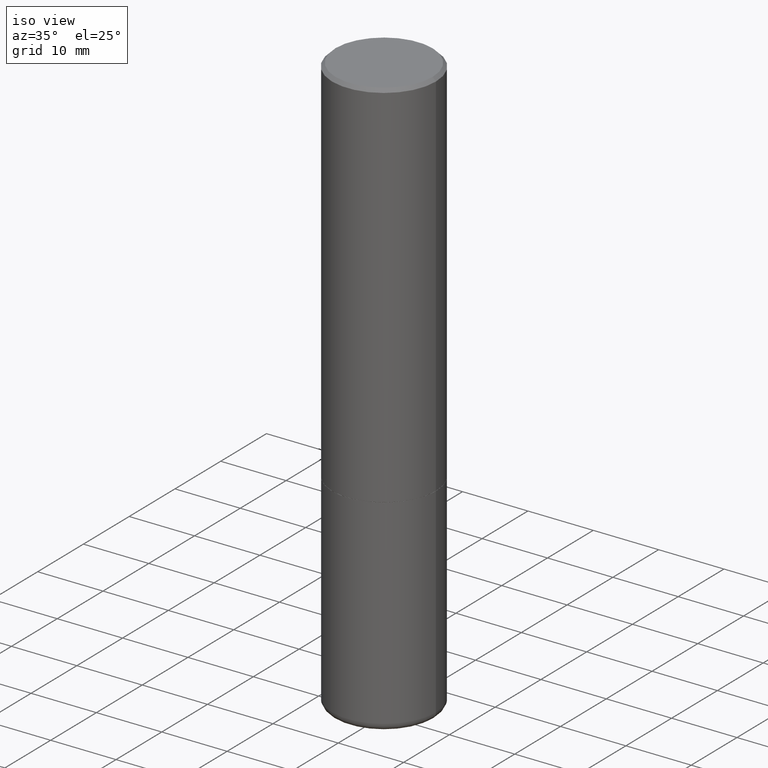
[diagram: clean part render]
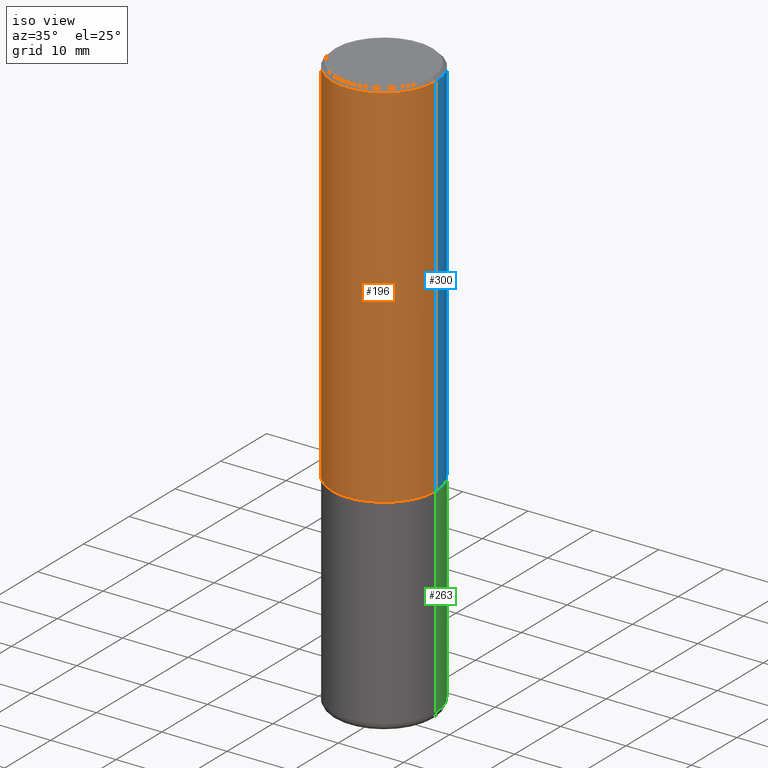
[diagram: same view with three faces highlighted in distinct colors, each labeled with its STEP entity id]
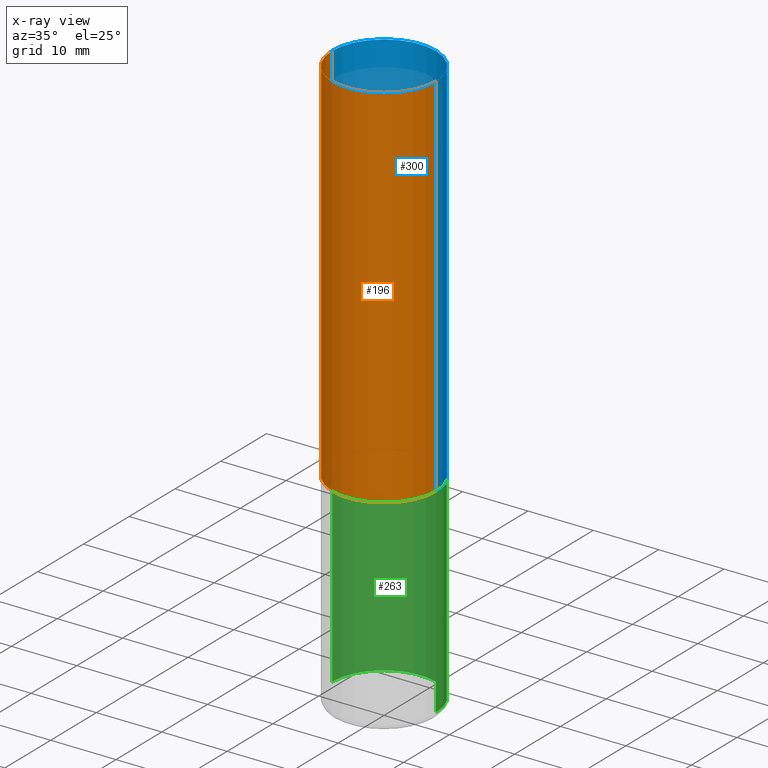
[diagram: x-ray of the same camera — body ghosted, the three highlighted faces saturated]
A machine part, iso view with three faces highlighted in distinct colors.
The next image is the same camera in x-ray (body ghosted, the three faces saturated) — at least one of them is partly hidden behind the body in this view.
Their STEP definitions:

[orange] entity #196 — the highlighted cylindrical surface (partial cylindrical patch) has radius 7.9375 mm, axis along (-0, 0, 1).
#7 = DIRECTION ( 'NONE',  ( -2.445468806185136877E-29, 3.491481338843145188E-15, 1.000000000000000000 ) ) ;
#17 = FACE_OUTER_BOUND ( 'NONE', #339, .T. ) ;
#18 = DIRECTION ( 'NONE',  ( -2.445468806185136597E-29, 3.491481338843145583E-15, 1.000000000000000000 ) ) ;
#36 = LINE ( 'NONE', #176, #404 ) ;
#37 = DIRECTION ( 'NONE',  ( 1.000000000000000000, -6.982962677686265133E-15, 0.000000000000000000 ) ) ;
#61 = VECTOR ( 'NONE', #312, 39.37007874015748143 ) ;
#67 = LINE ( 'NONE', #209, #61 ) ;
#68 = DIRECTION ( 'NONE',  ( -2.445468806185136597E-29, 3.491481338843145583E-15, 1.000000000000000000 ) ) ;
#78 = CARTESIAN_POINT ( 'NONE',  ( -0.3125000000000000000, -1.740639529667232739E-15, -2.248999999999999222 ) ) ;
#103 = EDGE_CURVE ( 'NONE', #165, #337, #67, .T. ) ;
#120 = EDGE_CURVE ( 'NONE', #407, #179, #36, .T. ) ;
#125 = CARTESIAN_POINT ( 'NONE',  ( -0.3124999999999998335, 2.112346210000093866E-15, -0.02000000000000002123 ) ) ;
#127 = CIRCLE ( 'NONE', #320, 0.3125000000000000000 ) ;
#141 = DIRECTION ( 'NONE',  ( 1.000000000000000000, -6.982962677686266711E-15, 4.876176775795935232E-29 ) ) ;
#151 = DIRECTION ( 'NONE',  ( -2.445468806185136597E-29, 3.491481338843145583E-15, 1.000000000000000000 ) ) ;
#155 = DIRECTION ( 'NONE',  ( 1.000000000000000000, -6.982962677686269077E-15, 0.000000000000000000 ) ) ;
#156 = EDGE_CURVE ( 'NONE', #165, #407, #127, .T. ) ;
#165 = VERTEX_POINT ( 'NONE', #78 ) ;
#176 = CARTESIAN_POINT ( 'NONE',  ( 0.3124999999999998890, -2.182175836776957558E-15, 1.523805242436229235E-29 ) ) ;
#179 = VERTEX_POINT ( 'NONE', #318 ) ;
#181 = CARTESIAN_POINT ( 'NONE',  ( 0.3125000000000000000, -1.003451736783519063E-14, -2.248999999999999222 ) ) ;
#193 = AXIS2_PLACEMENT_3D ( 'NONE', #380, #68, #37 ) ;
#196 = ADVANCED_FACE ( 'NONE', ( #17 ), #210, .T. ) ;
#198 = ORIENTED_EDGE ( 'NONE', *, *, #240, .F. ) ;
#201 = AXIS2_PLACEMENT_3D ( 'NONE', #249, #151, #141 ) ;
#209 = CARTESIAN_POINT ( 'NONE',  ( -0.3124999999999998890, 2.220446049250312292E-15, -1.537167215704657391E-29 ) ) ;
#210 = CYLINDRICAL_SURFACE ( 'NONE', #201, 0.3124999999999998890 ) ;
#211 = CIRCLE ( 'NONE', #193, 0.3124999999999998335 ) ;
#240 = EDGE_CURVE ( 'NONE', #337, #179, #211, .T. ) ;
#249 = CARTESIAN_POINT ( 'NONE',  ( 0.000000000000000000, 0.000000000000000000, 0.000000000000000000 ) ) ;
#255 = CARTESIAN_POINT ( 'NONE',  ( 5.499859345110370619E-29, -7.852341531058232286E-15, -2.248999999999999222 ) ) ;
#266 = ORIENTED_EDGE ( 'NONE', *, *, #156, .T. ) ;
#306 = ORIENTED_EDGE ( 'NONE', *, *, #120, .T. ) ;
#312 = DIRECTION ( 'NONE',  ( -2.445468806185136877E-29, 3.491481338843145188E-15, 1.000000000000000000 ) ) ;
#318 = CARTESIAN_POINT ( 'NONE',  ( 0.3124999999999998335, -2.213735251080465334E-15, -0.02000000000000002123 ) ) ;
#320 = AXIS2_PLACEMENT_3D ( 'NONE', #255, #18, #155 ) ;
#337 = VERTEX_POINT ( 'NONE', #125 ) ;
#339 = EDGE_LOOP ( 'NONE', ( #374, #266, #306, #198 ) ) ;
#374 = ORIENTED_EDGE ( 'NONE', *, *, #103, .F. ) ;
#380 = CARTESIAN_POINT ( 'NONE',  ( 4.890937612370278413E-31, -6.982962677686297772E-17, -0.02000000000000002123 ) ) ;
#404 = VECTOR ( 'NONE', #7, 39.37007874015748143 ) ;
#407 = VERTEX_POINT ( 'NONE', #181 ) ;

[blue] entity #300 — the highlighted cylindrical surface (partial cylindrical patch) has radius 7.9375 mm, axis along (-0, 0, 1).
#4 = DIRECTION ( 'NONE',  ( 1.000000000000000000, -6.982962677686269077E-15, 0.000000000000000000 ) ) ;
#7 = DIRECTION ( 'NONE',  ( -2.445468806185136877E-29, 3.491481338843145188E-15, 1.000000000000000000 ) ) ;
#30 = ORIENTED_EDGE ( 'NONE', *, *, #293, .T. ) ;
#36 = LINE ( 'NONE', #176, #404 ) ;
#54 = EDGE_CURVE ( 'NONE', #179, #337, #278, .T. ) ;
#56 = AXIS2_PLACEMENT_3D ( 'NONE', #349, #379, #418 ) ;
#61 = VECTOR ( 'NONE', #312, 39.37007874015748143 ) ;
#67 = LINE ( 'NONE', #209, #61 ) ;
#78 = CARTESIAN_POINT ( 'NONE',  ( -0.3125000000000000000, -1.740639529667232739E-15, -2.248999999999999222 ) ) ;
#100 = CIRCLE ( 'NONE', #114, 0.3125000000000000000 ) ;
#103 = EDGE_CURVE ( 'NONE', #165, #337, #67, .T. ) ;
#106 = CYLINDRICAL_SURFACE ( 'NONE', #357, 0.3124999999999998890 ) ;
#114 = AXIS2_PLACEMENT_3D ( 'NONE', #173, #309, #4 ) ;
#120 = EDGE_CURVE ( 'NONE', #407, #179, #36, .T. ) ;
#125 = CARTESIAN_POINT ( 'NONE',  ( -0.3124999999999998335, 2.112346210000093866E-15, -0.02000000000000002123 ) ) ;
#165 = VERTEX_POINT ( 'NONE', #78 ) ;
#173 = CARTESIAN_POINT ( 'NONE',  ( 5.499859345110370619E-29, -7.852341531058232286E-15, -2.248999999999999222 ) ) ;
#176 = CARTESIAN_POINT ( 'NONE',  ( 0.3124999999999998890, -2.182175836776957558E-15, 1.523805242436229235E-29 ) ) ;
#179 = VERTEX_POINT ( 'NONE', #318 ) ;
#181 = CARTESIAN_POINT ( 'NONE',  ( 0.3125000000000000000, -1.003451736783519063E-14, -2.248999999999999222 ) ) ;
#205 = EDGE_LOOP ( 'NONE', ( #30, #367, #370, #269 ) ) ;
#209 = CARTESIAN_POINT ( 'NONE',  ( -0.3124999999999998890, 2.220446049250312292E-15, -1.537167215704657391E-29 ) ) ;
#226 = DIRECTION ( 'NONE',  ( 1.000000000000000000, -6.982962677686266711E-15, 4.876176775795935232E-29 ) ) ;
#243 = CARTESIAN_POINT ( 'NONE',  ( 0.000000000000000000, 0.000000000000000000, 0.000000000000000000 ) ) ;
#269 = ORIENTED_EDGE ( 'NONE', *, *, #120, .F. ) ;
#278 = CIRCLE ( 'NONE', #56, 0.3124999999999998335 ) ;
#293 = EDGE_CURVE ( 'NONE', #407, #165, #100, .T. ) ;
#300 = ADVANCED_FACE ( 'NONE', ( #415 ), #106, .T. ) ;
#309 = DIRECTION ( 'NONE',  ( -2.445468806185136597E-29, 3.491481338843145583E-15, 1.000000000000000000 ) ) ;
#312 = DIRECTION ( 'NONE',  ( -2.445468806185136877E-29, 3.491481338843145188E-15, 1.000000000000000000 ) ) ;
#318 = CARTESIAN_POINT ( 'NONE',  ( 0.3124999999999998335, -2.213735251080465334E-15, -0.02000000000000002123 ) ) ;
#337 = VERTEX_POINT ( 'NONE', #125 ) ;
#349 = CARTESIAN_POINT ( 'NONE',  ( 4.890937612370278413E-31, -6.982962677686297772E-17, -0.02000000000000002123 ) ) ;
#357 = AXIS2_PLACEMENT_3D ( 'NONE', #243, #376, #226 ) ;
#367 = ORIENTED_EDGE ( 'NONE', *, *, #103, .T. ) ;
#370 = ORIENTED_EDGE ( 'NONE', *, *, #54, .F. ) ;
#376 = DIRECTION ( 'NONE',  ( -2.445468806185136597E-29, 3.491481338843145583E-15, 1.000000000000000000 ) ) ;
#379 = DIRECTION ( 'NONE',  ( -2.445468806185136597E-29, 3.491481338843145583E-15, 1.000000000000000000 ) ) ;
#404 = VECTOR ( 'NONE', #7, 39.37007874015748143 ) ;
#407 = VERTEX_POINT ( 'NONE', #181 ) ;
#415 = FACE_OUTER_BOUND ( 'NONE', #205, .T. ) ;
#418 = DIRECTION ( 'NONE',  ( 1.000000000000000000, -6.982962677686265133E-15, 0.000000000000000000 ) ) ;

[green] entity #263 — the highlighted cylindrical surface (partial cylindrical patch) has radius 7.9375 mm, axis along (-0, 0, 1).
#10 = CARTESIAN_POINT ( 'NONE',  ( -0.3125000000000000000, -7.739112131260931893E-15, -3.455061670936044216 ) ) ;
#34 = DIRECTION ( 'NONE',  ( 1.000000000000000000, -6.982962677686269077E-15, 0.000000000000000000 ) ) ;
#41 = CARTESIAN_POINT ( 'NONE',  ( -0.3125000000000000000, 2.220446049250313081E-15, -1.537167215704658232E-29 ) ) ;
#42 = ORIENTED_EDGE ( 'NONE', *, *, #372, .T. ) ;
#57 = AXIS2_PLACEMENT_3D ( 'NONE', #177, #285, #65 ) ;
#65 = DIRECTION ( 'NONE',  ( 1.000000000000000000, -6.982962677686266711E-15, 4.876176775795936353E-29 ) ) ;
#66 = CARTESIAN_POINT ( 'NONE',  ( -0.3125000000000000000, -7.739112131260931893E-15, -2.249999999999999556 ) ) ;
#88 = CIRCLE ( 'NONE', #296, 0.3125000000000000000 ) ;
#102 = VERTEX_POINT ( 'NONE', #148 ) ;
#108 = DIRECTION ( 'NONE',  ( -2.445468806185136877E-29, 3.491481338843145188E-15, 1.000000000000000000 ) ) ;
#110 = DIRECTION ( 'NONE',  ( -2.445468806185136597E-29, 3.491481338843145583E-15, 1.000000000000000000 ) ) ;
#111 = CARTESIAN_POINT ( 'NONE',  ( 0.3125000000000000000, -2.182175836776958347E-15, 1.523805242436230075E-29 ) ) ;
#113 = ORIENTED_EDGE ( 'NONE', *, *, #167, .F. ) ;
#115 = DIRECTION ( 'NONE',  ( 1.000000000000000000, -6.982962677686265133E-15, 0.000000000000000000 ) ) ;
#124 = VECTOR ( 'NONE', #410, 39.37007874015748143 ) ;
#131 = AXIS2_PLACEMENT_3D ( 'NONE', #356, #221, #115 ) ;
#148 = CARTESIAN_POINT ( 'NONE',  ( 0.3125000000000000000, -1.424545918540237458E-14, -3.455061670936044216 ) ) ;
#166 = ORIENTED_EDGE ( 'NONE', *, *, #280, .T. ) ;
#167 = EDGE_CURVE ( 'NONE', #411, #440, #168, .T. ) ;
#168 = CIRCLE ( 'NONE', #131, 0.3125000000000000000 ) ;
#171 = LINE ( 'NONE', #41, #272 ) ;
#177 = CARTESIAN_POINT ( 'NONE',  ( 0.000000000000000000, 0.000000000000000000, 0.000000000000000000 ) ) ;
#221 = DIRECTION ( 'NONE',  ( -2.445468806185136597E-29, 3.491481338843145583E-15, 1.000000000000000000 ) ) ;
#263 = ADVANCED_FACE ( 'NONE', ( #313 ), #323, .T. ) ;
#272 = VECTOR ( 'NONE', #108, 39.37007874015748143 ) ;
#280 = EDGE_CURVE ( 'NONE', #102, #442, #88, .T. ) ;
#284 = EDGE_LOOP ( 'NONE', ( #166, #42, #113, #335 ) ) ;
#285 = DIRECTION ( 'NONE',  ( -2.445468806185136597E-29, 3.491481338843145583E-15, 1.000000000000000000 ) ) ;
#296 = AXIS2_PLACEMENT_3D ( 'NONE', #342, #110, #34 ) ;
#311 = LINE ( 'NONE', #111, #124 ) ;
#313 = FACE_OUTER_BOUND ( 'NONE', #284, .T. ) ;
#323 = CYLINDRICAL_SURFACE ( 'NONE', #57, 0.3125000000000000000 ) ;
#335 = ORIENTED_EDGE ( 'NONE', *, *, #401, .F. ) ;
#342 = CARTESIAN_POINT ( 'NONE',  ( 8.449245539719989979E-29, -1.206328334862541465E-14, -3.455061670936044216 ) ) ;
#356 = CARTESIAN_POINT ( 'NONE',  ( 5.502304813916556222E-29, -7.855833012397075293E-15, -2.249999999999999556 ) ) ;
#372 = EDGE_CURVE ( 'NONE', #442, #440, #171, .T. ) ;
#384 = CARTESIAN_POINT ( 'NONE',  ( 0.3125000000000000000, -1.003800884917403364E-14, -2.249999999999999556 ) ) ;
#401 = EDGE_CURVE ( 'NONE', #102, #411, #311, .T. ) ;
#410 = DIRECTION ( 'NONE',  ( -2.445468806185136877E-29, 3.491481338843145188E-15, 1.000000000000000000 ) ) ;
#411 = VERTEX_POINT ( 'NONE', #384 ) ;
#440 = VERTEX_POINT ( 'NONE', #66 ) ;
#442 = VERTEX_POINT ( 'NONE', #10 ) ;